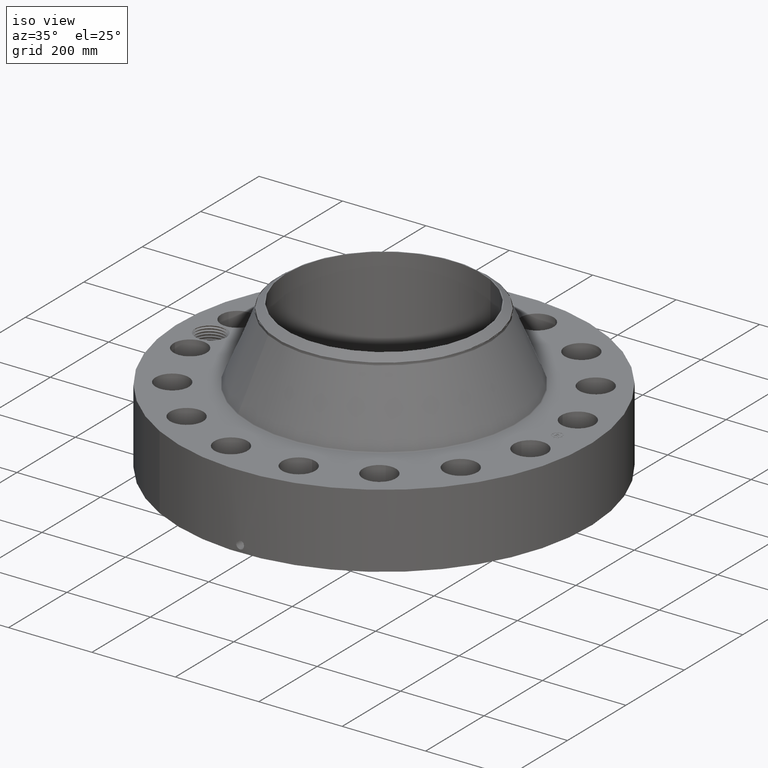
[diagram: clean part render]
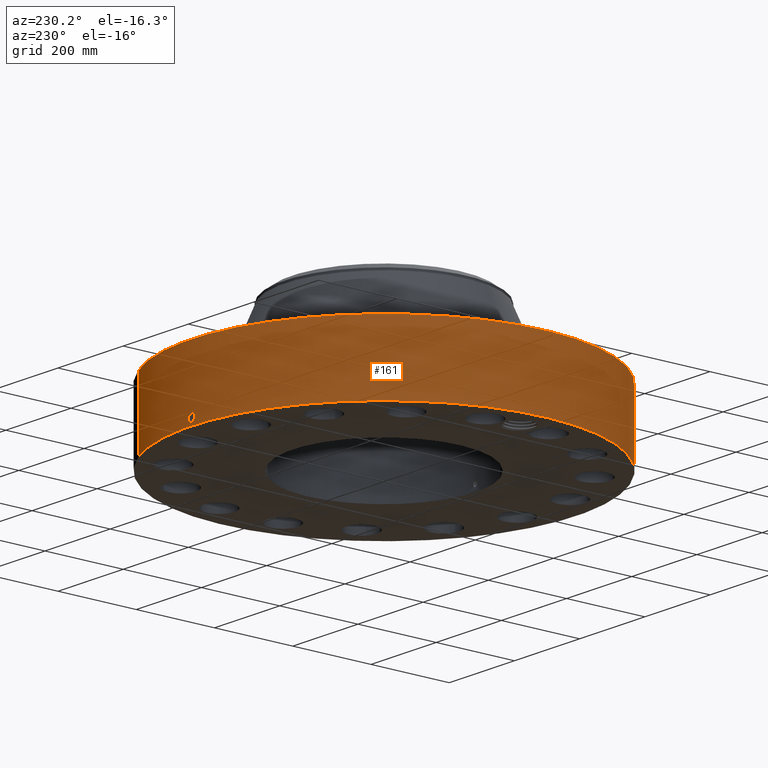
[diagram: tour spotlight — one face highlighted and labeled with its STEP entity id]
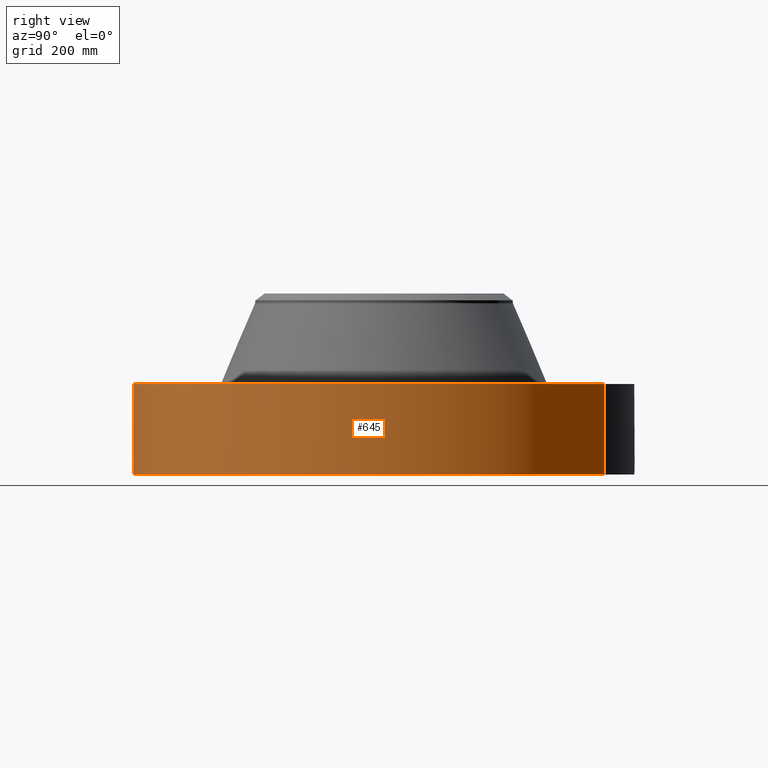
[diagram: tour spotlight — one face highlighted and labeled with its STEP entity id]
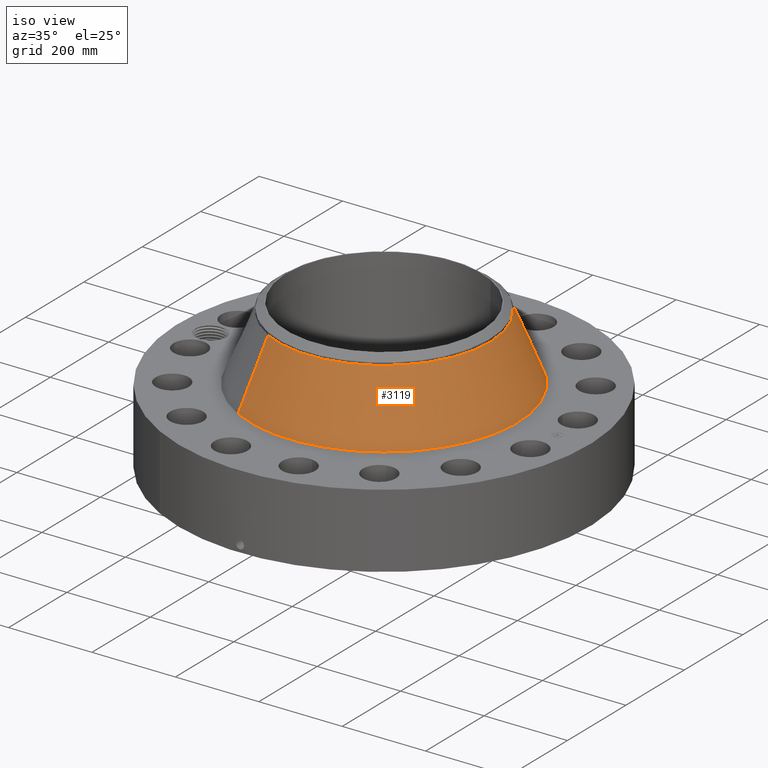
[diagram: tour spotlight — one face highlighted and labeled with its STEP entity id]
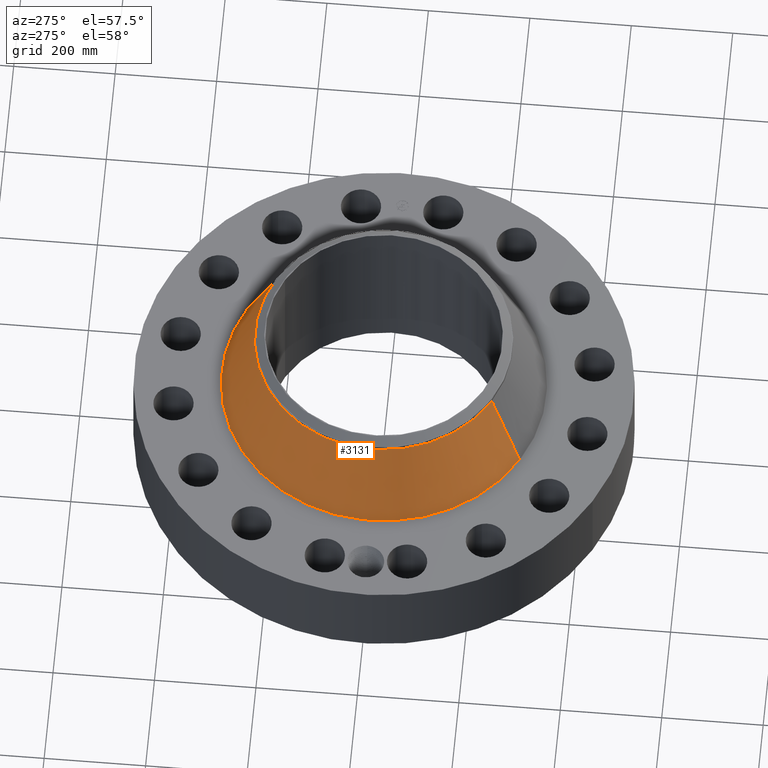
[diagram: tour spotlight — one face highlighted and labeled with its STEP entity id]
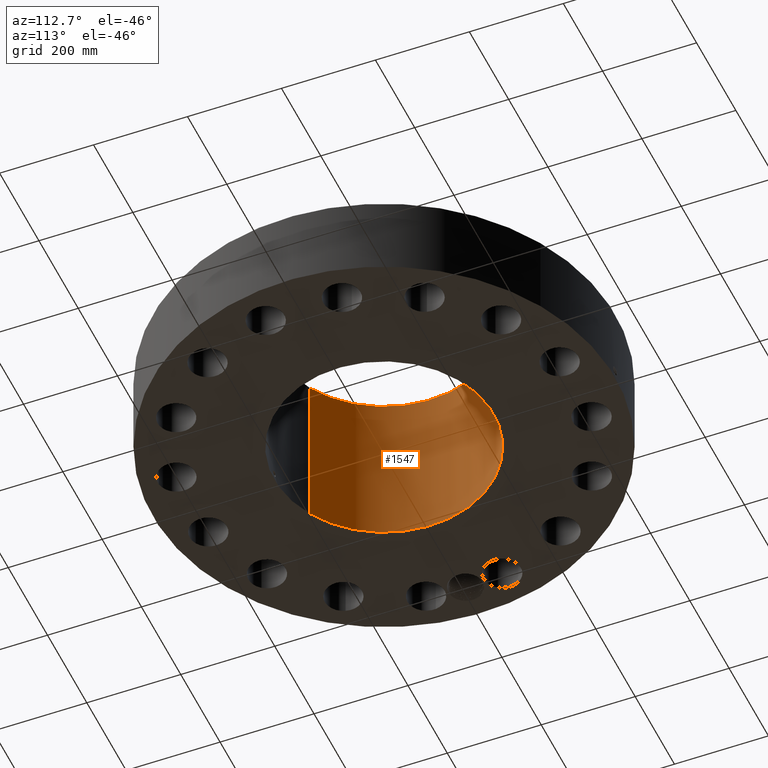
[diagram: tour spotlight — one face highlighted and labeled with its STEP entity id]
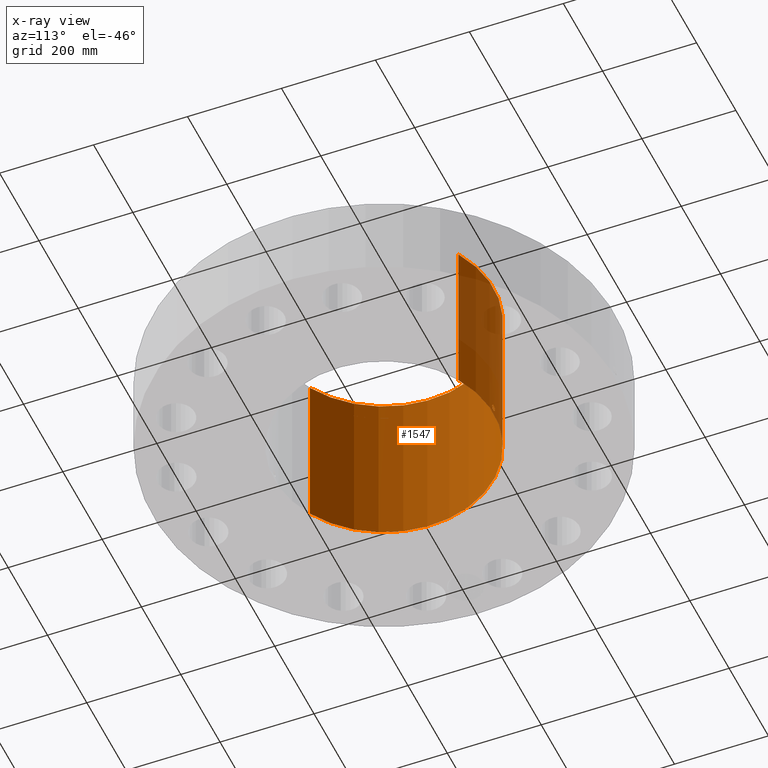
[diagram: x-ray of the same camera — body ghosted, this tour face saturated]
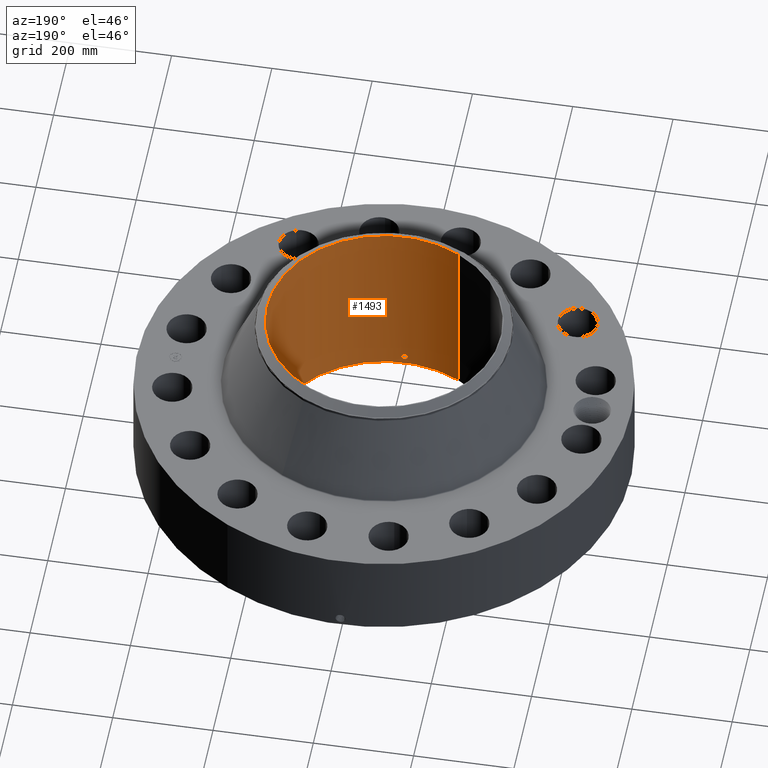
[diagram: tour spotlight — one face highlighted and labeled with its STEP entity id]
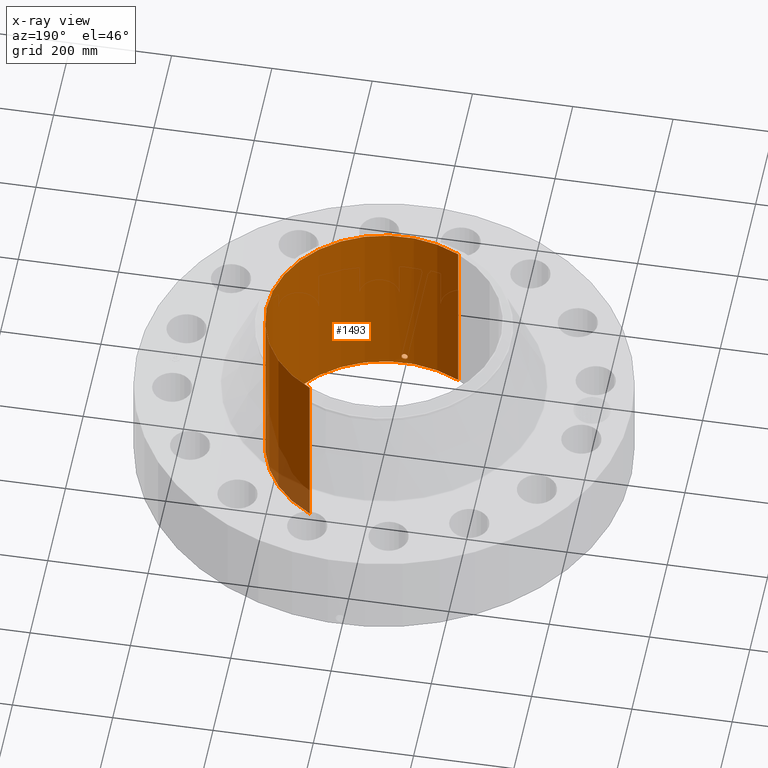
[diagram: x-ray of the same camera — body ghosted, this tour face saturated]
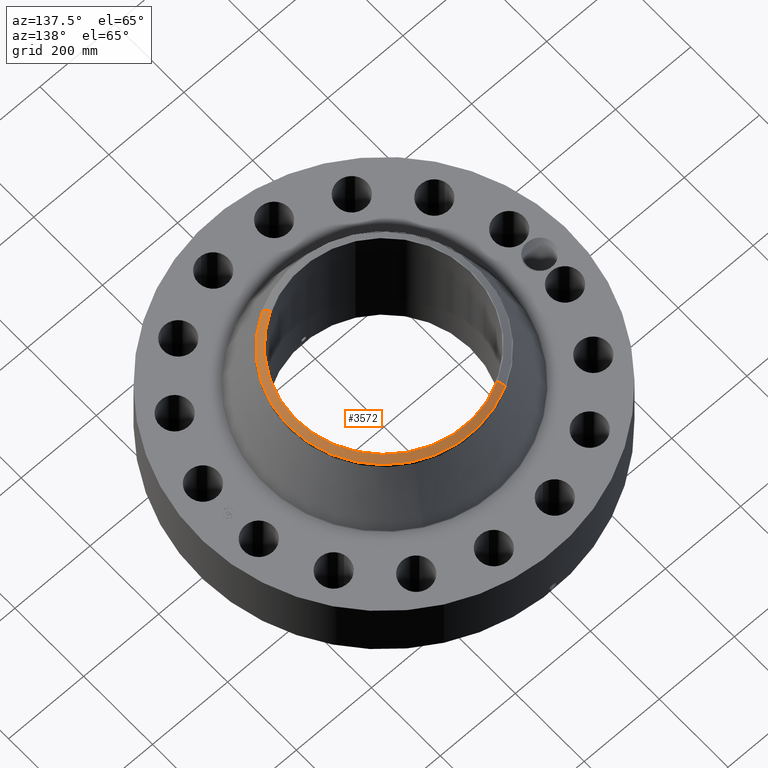
[diagram: tour spotlight — one face highlighted and labeled with its STEP entity id]
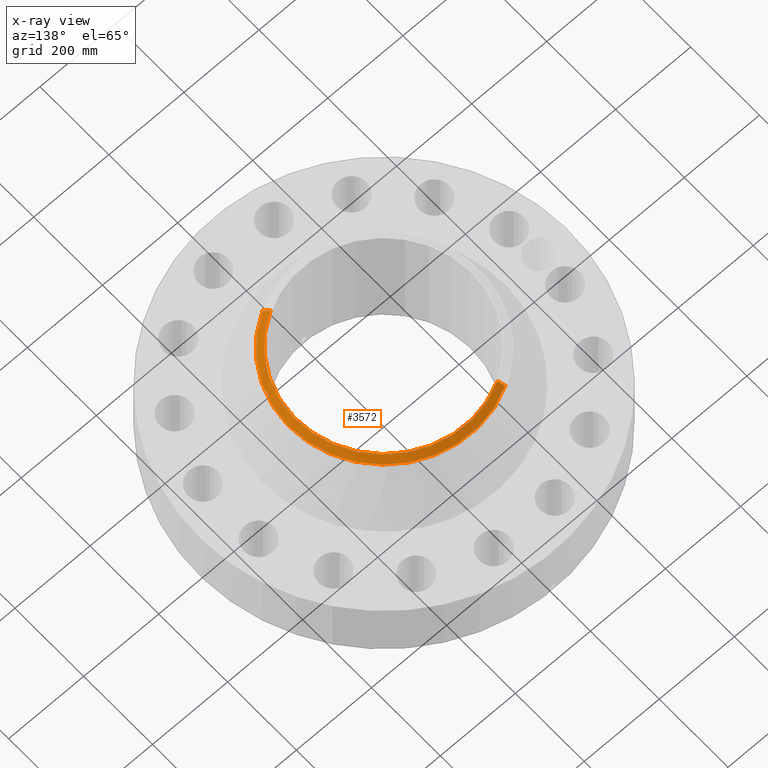
[diagram: x-ray of the same camera — body ghosted, this tour face saturated]
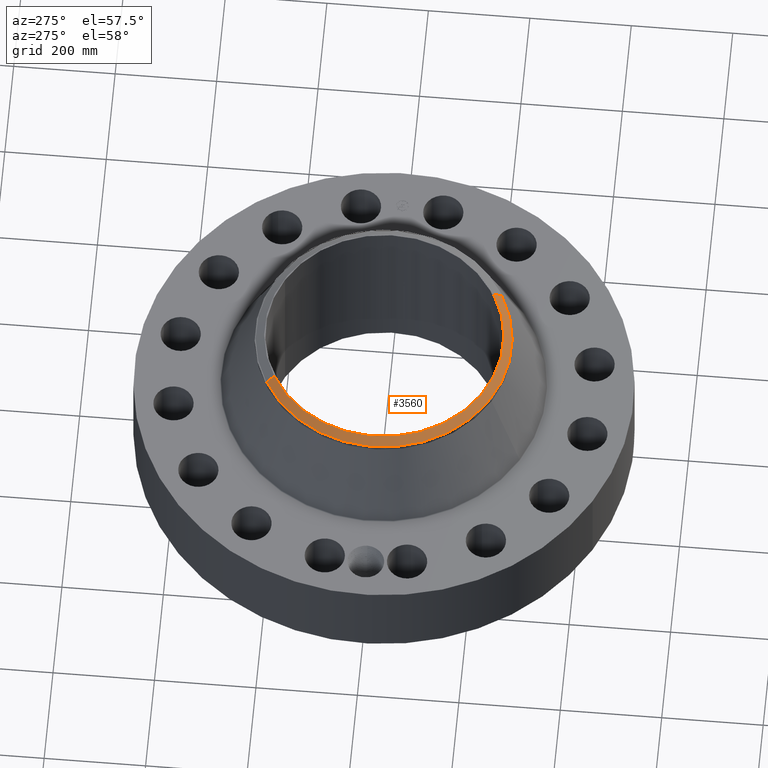
[diagram: tour spotlight — one face highlighted and labeled with its STEP entity id]
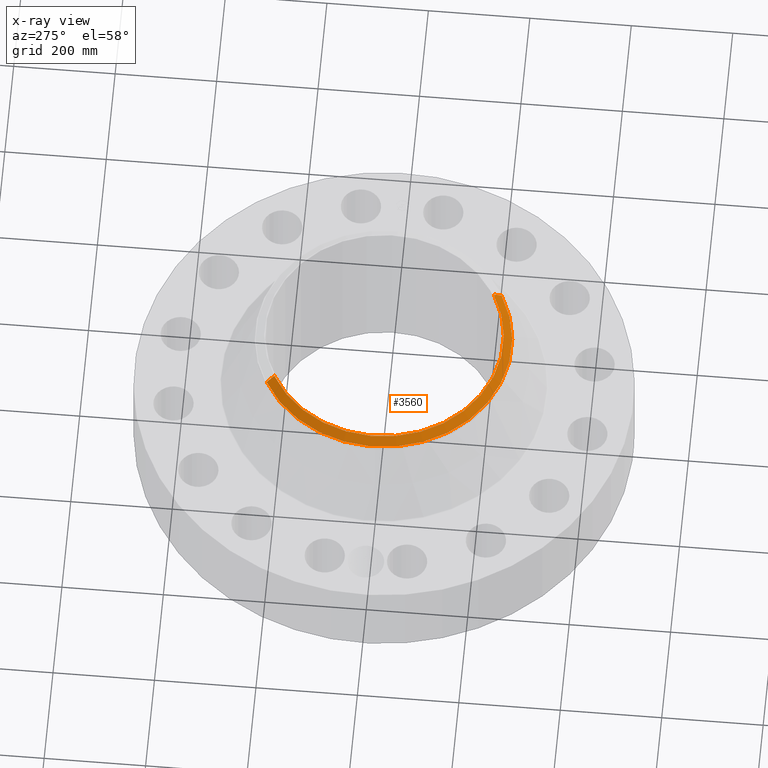
[diagram: x-ray of the same camera — body ghosted, this tour face saturated]
A machine part: a face-by-face anatomy tour. The part has 864 B-rep faces; the first image is the clean iso view, then the 8 largest visible faces are spotlighted one at a time (largest first), each with its STEP entity span.

Face 1 — auxiliary view, entity #161. In plain terms, the highlighted cylindrical surface (partial cylindrical patch) has radius 492.125 mm, axis along (0, 0, -1).
Definition (entity closure, byte-faithful):
#38=AXIS2_PLACEMENT_3D('Cylinder Axis2P3D',#35,#36,#37) ;
#42=AXIS2_PLACEMENT_3D('Circle Axis2P3D',#40,#41,$) ;
#58=AXIS2_PLACEMENT_3D('Circle Axis2P3D',#56,#57,$) ;
#35=CARTESIAN_POINT('Axis2P3D Location',(0.,0.,7.25000000003)) ;
#40=CARTESIAN_POINT('Axis2P3D Location',(0.,0.,0.250000000001)) ;
#44=CARTESIAN_POINT('Vertex',(-9.28886981049,-17.0031621367,0.250000000001)) ;
#46=CARTESIAN_POINT('Vertex',(9.28886981049,17.0031621367,0.250000000001)) ;
#49=CARTESIAN_POINT('Line Origine',(-9.28886981049,-17.0031621367,3.75000000002)) ;
#53=CARTESIAN_POINT('Vertex',(-9.28886981049,-17.0031621367,7.25000000003)) ;
#56=CARTESIAN_POINT('Axis2P3D Location',(0.,0.,7.25000000003)) ;
#60=CARTESIAN_POINT('Vertex',(9.28886981049,17.0031621367,7.25000000003)) ;
#63=CARTESIAN_POINT('Line Origine',(9.28886981049,17.0031621367,3.75000000002)) ;
#75=CARTESIAN_POINT('Control Point',(-0.000715863906137,19.3749999869,1.29411846178)) ;
#76=CARTESIAN_POINT('Control Point',(-0.0187274883313,19.3749993214,1.29408209957)) ;
#77=CARTESIAN_POINT('Control Point',(-0.0367360096991,19.3749733466,1.29266801176)) ;
#78=CARTESIAN_POINT('Control Point',(-0.0545323828118,19.3749232572,1.28989276382)) ;
#79=CARTESIAN_POINT('Vertex',(-0.000715586006328,19.3749999869,1.29411851089)) ;
#81=CARTESIAN_POINT('Vertex',(-0.0545238961166,19.3749235316,1.28989410461)) ;
#85=CARTESIAN_POINT('Control Point',(-0.0545238033061,19.3749232813,1.28989356526)) ;
#86=CARTESIAN_POINT('Control Point',(-0.0952495089722,19.3748086734,1.28558793415)) ;
#87=CARTESIAN_POINT('Control Point',(-0.135369475666,19.3745624178,1.27388902874)) ;
#88=CARTESIAN_POINT('Control Point',(-0.172364944289,19.3742332836,1.25554232244)) ;
#89=CARTESIAN_POINT('Vertex',(-0.172364944289,19.3742332836,1.25554232244)) ;
#93=CARTESIAN_POINT('Control Point',(-0.0312436872624,19.3749748086,0.531206483314)) ;
#94=CARTESIAN_POINT('Control Point',(-0.0678023318629,19.3749158549,0.535827410901)) ;
#95=CARTESIAN_POINT('Control Point',(-0.103721707623,19.3747717037,0.544692425008)) ;
#96=CARTESIAN_POINT('Control Point',(-0.13832670787,19.3745493389,0.55768984845)) ;
#97=CARTESIAN_POINT('Control Point',(-0.226423499782,19.373793319,0.603083765609)) ;
#98=CARTESIAN_POINT('Control Point',(-0.29672046942,19.3727935842,0.673349716743)) ;
#99=CARTESIAN_POINT('Control Point',(-0.331423572753,19.3721888927,0.725376513853)) ;
#100=CARTESIAN_POINT('Control Point',(-0.371132085776,19.3714520452,0.820793001422)) ;
#101=CARTESIAN_POINT('Control Point',(-0.378801310697,19.3712955761,0.921903188621)) ;
#102=CARTESIAN_POINT('Control Point',(-0.376557324657,19.3713406701,0.962651832276)) ;
#103=CARTESIAN_POINT('Control Point',(-0.358089730339,19.3717053706,1.0607502191)) ;
#104=CARTESIAN_POINT('Control Point',(-0.309416329513,19.372565076,1.14816236138)) ;
#105=CARTESIAN_POINT('Control Point',(-0.270709006896,19.3731860125,1.19359996412)) ;
#106=CARTESIAN_POINT('Control Point',(-0.224046601796,19.3737734922,1.22991247236)) ;
#107=CARTESIAN_POINT('Control Point',(-0.172364944289,19.3742332836,1.25554232244)) ;
#108=CARTESIAN_POINT('Vertex',(-0.0312436872625,19.3749748086,0.531206483314)) ;
#112=CARTESIAN_POINT('Control Point',(-0.0312436872625,19.3749748086,0.531206483314)) ;
#113=CARTESIAN_POINT('Control Point',(-0.0208245853632,19.3749916103,0.530877072219)) ;
#114=CARTESIAN_POINT('Control Point',(-0.010397084356,19.3750000015,0.530933315092)) ;
#115=CARTESIAN_POINT('Control Point',(2.72878354638E-006,19.3750000001,0.531374667806)) ;
#116=CARTESIAN_POINT('Vertex',(2.7287835431E-006,19.3750000001,0.531374667806)) ;
#120=CARTESIAN_POINT('Control Point',(0.192438333938,19.3740442988,0.587755384677)) ;
#121=CARTESIAN_POINT('Control Point',(0.148933431972,19.3744764239,0.562242000764)) ;
#122=CARTESIAN_POINT('Control Point',(0.101103937385,19.3748218689,0.543850312289)) ;
#123=CARTESIAN_POINT('Control Point',(0.0508013594739,19.3749999929,0.533530485511)) ;
#124=CARTESIAN_POINT('Control Point',(2.72878358079E-006,19.3750000001,0.531374667806)) ;
#125=CARTESIAN_POINT('Vertex',(0.192438333938,19.3740442988,0.587755384677)) ;
#129=CARTESIAN_POINT('Control Point',(0.192438333938,19.3740442988,0.587755384677)) ;
#130=CARTESIAN_POINT('Control Point',(0.249135601853,19.3734811367,0.621005414192)) ;
#131=CARTESIAN_POINT('Control Point',(0.298965771244,19.372778761,0.665594552044)) ;
#132=CARTESIAN_POINT('Control Point',(0.338770752616,19.3720688151,0.719874275645)) ;
#133=CARTESIAN_POINT('Control Point',(0.38253638269,19.3712307611,0.818236552249)) ;
#134=CARTESIAN_POINT('Control Point',(0.390765580034,19.3710579406,0.923505600086)) ;
#135=CARTESIAN_POINT('Control Point',(0.388528855119,19.3711042966,0.963744548928)) ;
#136=CARTESIAN_POINT('Control Point',(0.373405470833,19.371412167,1.04267052773)) ;
#137=CARTESIAN_POINT('Control Point',(0.338386080565,19.3720580517,1.1143932305)) ;
#138=CARTESIAN_POINT('Control Point',(0.316177991298,19.3724439891,1.14765006657)) ;
#139=CARTESIAN_POINT('Control Point',(0.251663804444,19.3734494968,1.22092676017)) ;
#140=CARTESIAN_POINT('Control Point',(0.167306066196,19.3743818271,1.26997762696)) ;
#141=CARTESIAN_POINT('Control Point',(0.112550834199,19.3747986662,1.28889783266)) ;
#142=CARTESIAN_POINT('Control Point',(0.055857980735,19.3750000746,1.29689292322)) ;
#143=CARTESIAN_POINT('Control Point',(-2.58579355534E-005,19.3750000001,1.29415298429)) ;
#144=CARTESIAN_POINT('Vertex',(-2.58579355508E-005,19.3750000001,1.29415298429)) ;
#148=CARTESIAN_POINT('Control Point',(-0.000715585996851,19.3749999869,1.29411851087)) ;
#149=CARTESIAN_POINT('Control Point',(-0.000370746639545,19.3749999996,1.2941360747)) ;
#150=CARTESIAN_POINT('Control Point',(-2.58579403754E-005,19.3750000001,1.29415298429)) ;
#36=DIRECTION('Axis2P3D Direction',(0.,0.,-0.0393700787402)) ;
#37=DIRECTION('Axis2P3D XDirection',(0.0188750212049,0.0345504945626,0.)) ;
#41=DIRECTION('Axis2P3D Direction',(0.,0.,-0.0393700787402)) ;
#50=DIRECTION('Vector Direction',(0.,0.,-0.0393700787402)) ;
#57=DIRECTION('Axis2P3D Direction',(0.,0.,-0.0393700787402)) ;
#64=DIRECTION('Vector Direction',(0.,0.,-0.0393700787402)) ;
#51=VECTOR('Line Direction',#50,0.0393700787402) ;
#65=VECTOR('Line Direction',#64,0.0393700787402) ;
#69=ORIENTED_EDGE('',*,*,#48,.F.) ;
#70=ORIENTED_EDGE('',*,*,#55,.T.) ;
#71=ORIENTED_EDGE('',*,*,#62,.T.) ;
#72=ORIENTED_EDGE('',*,*,#67,.F.) ;
#153=ORIENTED_EDGE('',*,*,#83,.T.) ;
#154=ORIENTED_EDGE('',*,*,#91,.T.) ;
#155=ORIENTED_EDGE('',*,*,#110,.F.) ;
#156=ORIENTED_EDGE('',*,*,#118,.T.) ;
#157=ORIENTED_EDGE('',*,*,#127,.F.) ;
#158=ORIENTED_EDGE('',*,*,#146,.T.) ;
#159=ORIENTED_EDGE('',*,*,#151,.F.) ;
#160=FACE_BOUND('',#152,.T.) ;
#161=ADVANCED_FACE('PartBody',(#73,#160),#39,.T.) ;
#74=B_SPLINE_CURVE_WITH_KNOTS('',3,(#75,#76,#77,#78),.UNSPECIFIED.,.F.,.U.,(4,4),(34.6168723033,36.6150904812),.UNSPECIFIED.) ;
#84=B_SPLINE_CURVE_WITH_KNOTS('',3,(#85,#86,#87,#88),.UNSPECIFIED.,.F.,.U.,(4,4),(0.,4.60162958232),.UNSPECIFIED.) ;
#92=B_SPLINE_CURVE_WITH_KNOTS('',5,(#93,#94,#95,#96,#97,#98,#99,#100,#101,#102,#103,#104,#105,#106,#107),.UNSPECIFIED.,.F.,.U.,(6,3,3,3,6),(0.,6.40396597362,17.2723773463,24.6016623301,35.3155803226),.UNSPECIFIED.) ;
#111=B_SPLINE_CURVE_WITH_KNOTS('',3,(#112,#113,#114,#115),.UNSPECIFIED.,.F.,.U.,(4,4),(0.,1.0869021121),.UNSPECIFIED.) ;
#119=B_SPLINE_CURVE_WITH_KNOTS('',4,(#120,#121,#122,#123,#124),.UNSPECIFIED.,.F.,.U.,(5,5),(0.,7.07873473784),.UNSPECIFIED.) ;
#128=B_SPLINE_CURVE_WITH_KNOTS('',5,(#129,#130,#131,#132,#133,#134,#135,#136,#137,#138,#139,#140,#141,#142,#143),.UNSPECIFIED.,.F.,.U.,(6,3,3,3,6),(0.,11.5316007477,18.6403647727,25.7940112326,36.2398608955),.UNSPECIFIED.) ;
#147=B_SPLINE_CURVE_WITH_KNOTS('',2,(#148,#149,#150),.UNSPECIFIED.,.F.,.U.,(3,3),(1.0151980904,1.04098483471),.UNSPECIFIED.) ;
#43=CIRCLE('generated circle',#42,19.3750000001) ;
#59=CIRCLE('generated circle',#58,19.3750000001) ;
#39=CYLINDRICAL_SURFACE('generated cylinder',#38,19.3750000001) ;
#48=EDGE_CURVE('',#45,#47,#43,.T.) ;
#55=EDGE_CURVE('',#45,#54,#52,.F.) ;
#62=EDGE_CURVE('',#54,#61,#59,.T.) ;
#67=EDGE_CURVE('',#47,#61,#66,.F.) ;
#83=EDGE_CURVE('',#80,#82,#74,.T.) ;
#91=EDGE_CURVE('',#82,#90,#84,.T.) ;
#110=EDGE_CURVE('',#109,#90,#92,.T.) ;
#118=EDGE_CURVE('',#109,#117,#111,.T.) ;
#127=EDGE_CURVE('',#126,#117,#119,.T.) ;
#146=EDGE_CURVE('',#126,#145,#128,.T.) ;
#151=EDGE_CURVE('',#80,#145,#147,.T.) ;
#68=EDGE_LOOP('',(#69,#70,#71,#72)) ;
#152=EDGE_LOOP('',(#153,#154,#155,#156,#157,#158,#159)) ;
#73=FACE_OUTER_BOUND('',#68,.T.) ;
#52=LINE('Line',#49,#51) ;
#66=LINE('Line',#63,#65) ;
#45=VERTEX_POINT('',#44) ;
#47=VERTEX_POINT('',#46) ;
#54=VERTEX_POINT('',#53) ;
#61=VERTEX_POINT('',#60) ;
#80=VERTEX_POINT('',#79) ;
#82=VERTEX_POINT('',#81) ;
#90=VERTEX_POINT('',#89) ;
#109=VERTEX_POINT('',#108) ;
#117=VERTEX_POINT('',#116) ;
#126=VERTEX_POINT('',#125) ;
#145=VERTEX_POINT('',#144) ;

Face 2 — right view, entity #645. In plain terms, the highlighted cylindrical surface (partial cylindrical patch) has radius 492.125 mm, axis along (0, 0, -1).
Definition (entity closure, byte-faithful):
#38=AXIS2_PLACEMENT_3D('Cylinder Axis2P3D',#35,#36,#37) ;
#169=AXIS2_PLACEMENT_3D('Circle Axis2P3D',#167,#168,$) ;
#549=AXIS2_PLACEMENT_3D('Circle Axis2P3D',#547,#548,$) ;
#35=CARTESIAN_POINT('Axis2P3D Location',(0.,0.,7.25000000003)) ;
#44=CARTESIAN_POINT('Vertex',(-9.28886981049,-17.0031621367,0.250000000001)) ;
#46=CARTESIAN_POINT('Vertex',(9.28886981049,17.0031621367,0.250000000001)) ;
#49=CARTESIAN_POINT('Line Origine',(-9.28886981049,-17.0031621367,3.75000000002)) ;
#53=CARTESIAN_POINT('Vertex',(-9.28886981049,-17.0031621367,7.25000000003)) ;
#60=CARTESIAN_POINT('Vertex',(9.28886981049,17.0031621367,7.25000000003)) ;
#63=CARTESIAN_POINT('Line Origine',(9.28886981049,17.0031621367,3.75000000002)) ;
#167=CARTESIAN_POINT('Axis2P3D Location',(0.,0.,0.250000000001)) ;
#547=CARTESIAN_POINT('Axis2P3D Location',(0.,0.,7.25000000003)) ;
#559=CARTESIAN_POINT('Control Point',(0.000715863900766,-19.3749999869,1.29411846178)) ;
#560=CARTESIAN_POINT('Control Point',(0.0187274883215,-19.3749993214,1.29408209957)) ;
#561=CARTESIAN_POINT('Control Point',(0.036736009691,-19.3749733466,1.29266801176)) ;
#562=CARTESIAN_POINT('Control Point',(0.0545323828083,-19.3749232572,1.28989276382)) ;
#563=CARTESIAN_POINT('Vertex',(0.00071558600633,-19.3749999869,1.29411851089)) ;
#565=CARTESIAN_POINT('Vertex',(0.0545238961166,-19.3749235316,1.28989410461)) ;
#569=CARTESIAN_POINT('Control Point',(0.0545238033061,-19.3749232813,1.28989356526)) ;
#570=CARTESIAN_POINT('Control Point',(0.0952495089893,-19.3748086734,1.28558793415)) ;
#571=CARTESIAN_POINT('Control Point',(0.13536947565,-19.3745624178,1.27388902874)) ;
#572=CARTESIAN_POINT('Control Point',(0.172364944289,-19.3742332836,1.25554232244)) ;
#573=CARTESIAN_POINT('Vertex',(0.172364944289,-19.3742332836,1.25554232244)) ;
#577=CARTESIAN_POINT('Control Point',(0.0312436872625,-19.3749748086,0.531206483314)) ;
#578=CARTESIAN_POINT('Control Point',(0.0678023318613,-19.3749158549,0.535827410901)) ;
#579=CARTESIAN_POINT('Control Point',(0.10372170762,-19.3747717037,0.544692425009)) ;
#580=CARTESIAN_POINT('Control Point',(0.138326707874,-19.3745493389,0.557689848452)) ;
#581=CARTESIAN_POINT('Control Point',(0.226423499709,-19.373793319,0.603083765571)) ;
#582=CARTESIAN_POINT('Control Point',(0.296720469299,-19.3727935842,0.673349716623)) ;
#583=CARTESIAN_POINT('Control Point',(0.331423572817,-19.3721888927,0.725376514008)) ;
#584=CARTESIAN_POINT('Control Point',(0.371132085783,-19.3714520452,0.820793001505)) ;
#585=CARTESIAN_POINT('Control Point',(0.378801310697,-19.3712955761,0.92190318862)) ;
#586=CARTESIAN_POINT('Control Point',(0.376557324656,-19.3713406701,0.962651832278)) ;
#587=CARTESIAN_POINT('Control Point',(0.358089730346,-19.3717053706,1.06075021906)) ;
#588=CARTESIAN_POINT('Control Point',(0.309416329554,-19.372565076,1.1481623613)) ;
#589=CARTESIAN_POINT('Control Point',(0.270709006828,-19.3731860125,1.19359996416)) ;
#590=CARTESIAN_POINT('Control Point',(0.224046601759,-19.3737734922,1.22991247238)) ;
#591=CARTESIAN_POINT('Control Point',(0.172364944289,-19.3742332836,1.25554232244)) ;
#592=CARTESIAN_POINT('Vertex',(0.0312436872625,-19.3749748086,0.531206483314)) ;
#596=CARTESIAN_POINT('Control Point',(0.0312436872625,-19.3749748086,0.531206483314)) ;
#597=CARTESIAN_POINT('Control Point',(0.0208245853632,-19.3749916103,0.530877072219)) ;
#598=CARTESIAN_POINT('Control Point',(0.010397084356,-19.3750000015,0.530933315092)) ;
#599=CARTESIAN_POINT('Control Point',(-2.72878354875E-006,-19.3750000001,0.531374667806)) ;
#600=CARTESIAN_POINT('Vertex',(-2.72878354541E-006,-19.3750000001,0.531374667806)) ;
#604=CARTESIAN_POINT('Control Point',(-0.192438333938,-19.3740442988,0.587755384677)) ;
#605=CARTESIAN_POINT('Control Point',(-0.148933431991,-19.3744764239,0.562242000775)) ;
#606=CARTESIAN_POINT('Control Point',(-0.101103937362,-19.3748218689,0.543850312285)) ;
#607=CARTESIAN_POINT('Control Point',(-0.0508013594513,-19.3749999929,0.53353048551)) ;
#608=CARTESIAN_POINT('Control Point',(-2.72878354875E-006,-19.3750000001,0.531374667806)) ;
#609=CARTESIAN_POINT('Vertex',(-0.192438333938,-19.3740442988,0.587755384677)) ;
#613=CARTESIAN_POINT('Control Point',(-0.192438333938,-19.3740442988,0.587755384677)) ;
#614=CARTESIAN_POINT('Control Point',(-0.249135601972,-19.3734811367,0.621005414262)) ;
#615=CARTESIAN_POINT('Control Point',(-0.298965771452,-19.372778761,0.66559455223)) ;
#616=CARTESIAN_POINT('Control Point',(-0.33877075281,-19.3720688151,0.719874275894)) ;
#617=CARTESIAN_POINT('Control Point',(-0.382536382819,-19.3712307611,0.818236552637)) ;
#618=CARTESIAN_POINT('Control Point',(-0.390765580025,-19.3710579406,0.923505600568)) ;
#619=CARTESIAN_POINT('Control Point',(-0.388528855038,-19.3711042966,0.963744549594)) ;
#620=CARTESIAN_POINT('Control Point',(-0.37340547063,-19.371412167,1.04267052832)) ;
#621=CARTESIAN_POINT('Control Point',(-0.338386080275,-19.3720580517,1.11439323098)) ;
#622=CARTESIAN_POINT('Control Point',(-0.316177990953,-19.3724439891,1.14765006703)) ;
#623=CARTESIAN_POINT('Control Point',(-0.251663804045,-19.3734494968,1.22092676047)) ;
#624=CARTESIAN_POINT('Control Point',(-0.167306065805,-19.3743818271,1.26997762711)) ;
#625=CARTESIAN_POINT('Control Point',(-0.112550834048,-19.3747986662,1.28889783268)) ;
#626=CARTESIAN_POINT('Control Point',(-0.0558579806601,-19.3750000746,1.29689292322)) ;
#627=CARTESIAN_POINT('Control Point',(2.5857935551E-005,-19.3750000001,1.29415298429)) ;
#628=CARTESIAN_POINT('Vertex',(2.58579355483E-005,-19.3750000001,1.29415298429)) ;
#632=CARTESIAN_POINT('Control Point',(0.000715585996895,-19.3749999869,1.29411851087)) ;
#633=CARTESIAN_POINT('Control Point',(0.000370746639551,-19.3749999996,1.2941360747)) ;
#634=CARTESIAN_POINT('Control Point',(2.58579403441E-005,-19.3750000001,1.29415298429)) ;
#36=DIRECTION('Axis2P3D Direction',(0.,0.,-0.0393700787402)) ;
#37=DIRECTION('Axis2P3D XDirection',(0.0188750212049,0.0345504945626,0.)) ;
#50=DIRECTION('Vector Direction',(0.,0.,-0.0393700787402)) ;
#64=DIRECTION('Vector Direction',(0.,0.,-0.0393700787402)) ;
#168=DIRECTION('Axis2P3D Direction',(0.,0.,-0.0393700787402)) ;
#548=DIRECTION('Axis2P3D Direction',(0.,0.,-0.0393700787402)) ;
#51=VECTOR('Line Direction',#50,0.0393700787402) ;
#65=VECTOR('Line Direction',#64,0.0393700787402) ;
#553=ORIENTED_EDGE('',*,*,#171,.F.) ;
#554=ORIENTED_EDGE('',*,*,#67,.T.) ;
#555=ORIENTED_EDGE('',*,*,#551,.T.) ;
#556=ORIENTED_EDGE('',*,*,#55,.F.) ;
#637=ORIENTED_EDGE('',*,*,#567,.T.) ;
#638=ORIENTED_EDGE('',*,*,#575,.T.) ;
#639=ORIENTED_EDGE('',*,*,#594,.F.) ;
#640=ORIENTED_EDGE('',*,*,#602,.T.) ;
#641=ORIENTED_EDGE('',*,*,#611,.F.) ;
#642=ORIENTED_EDGE('',*,*,#630,.T.) ;
#643=ORIENTED_EDGE('',*,*,#635,.F.) ;
#644=FACE_BOUND('',#636,.T.) ;
#645=ADVANCED_FACE('PartBody',(#557,#644),#39,.T.) ;
#558=B_SPLINE_CURVE_WITH_KNOTS('',3,(#559,#560,#561,#562),.UNSPECIFIED.,.F.,.U.,(4,4),(34.6168722876,36.6150904657),.UNSPECIFIED.) ;
#568=B_SPLINE_CURVE_WITH_KNOTS('',3,(#569,#570,#571,#572),.UNSPECIFIED.,.F.,.U.,(4,4),(0.,4.60162958425),.UNSPECIFIED.) ;
#576=B_SPLINE_CURVE_WITH_KNOTS('',5,(#577,#578,#579,#580,#581,#582,#583,#584,#585,#586,#587,#588,#589,#590,#591),.UNSPECIFIED.,.F.,.U.,(6,3,3,3,6),(0.,6.40396597332,17.2723773312,24.6016623148,35.3155802998),.UNSPECIFIED.) ;
#595=B_SPLINE_CURVE_WITH_KNOTS('',3,(#596,#597,#598,#599),.UNSPECIFIED.,.F.,.U.,(4,4),(0.,1.0869021121),.UNSPECIFIED.) ;
#603=B_SPLINE_CURVE_WITH_KNOTS('',4,(#604,#605,#606,#607,#608),.UNSPECIFIED.,.F.,.U.,(5,5),(0.,7.07873473469),.UNSPECIFIED.) ;
#612=B_SPLINE_CURVE_WITH_KNOTS('',5,(#613,#614,#615,#616,#617,#618,#619,#620,#621,#622,#623,#624,#625,#626,#627),.UNSPECIFIED.,.F.,.U.,(6,3,3,3,6),(0.,11.5316007719,18.6403647884,25.7940112482,36.2398608971),.UNSPECIFIED.) ;
#631=B_SPLINE_CURVE_WITH_KNOTS('',2,(#632,#633,#634),.UNSPECIFIED.,.F.,.U.,(3,3),(1.0151980904,1.04098483471),.UNSPECIFIED.) ;
#170=CIRCLE('generated circle',#169,19.3750000001) ;
#550=CIRCLE('generated circle',#549,19.3750000001) ;
#39=CYLINDRICAL_SURFACE('generated cylinder',#38,19.3750000001) ;
#55=EDGE_CURVE('',#45,#54,#52,.F.) ;
#67=EDGE_CURVE('',#47,#61,#66,.F.) ;
#171=EDGE_CURVE('',#47,#45,#170,.T.) ;
#551=EDGE_CURVE('',#61,#54,#550,.T.) ;
#567=EDGE_CURVE('',#564,#566,#558,.T.) ;
#575=EDGE_CURVE('',#566,#574,#568,.T.) ;
#594=EDGE_CURVE('',#593,#574,#576,.T.) ;
#602=EDGE_CURVE('',#593,#601,#595,.T.) ;
#611=EDGE_CURVE('',#610,#601,#603,.T.) ;
#630=EDGE_CURVE('',#610,#629,#612,.T.) ;
#635=EDGE_CURVE('',#564,#629,#631,.T.) ;
#552=EDGE_LOOP('',(#553,#554,#555,#556)) ;
#636=EDGE_LOOP('',(#637,#638,#639,#640,#641,#642,#643)) ;
#557=FACE_OUTER_BOUND('',#552,.T.) ;
#52=LINE('Line',#49,#51) ;
#66=LINE('Line',#63,#65) ;
#45=VERTEX_POINT('',#44) ;
#47=VERTEX_POINT('',#46) ;
#54=VERTEX_POINT('',#53) ;
#61=VERTEX_POINT('',#60) ;
#564=VERTEX_POINT('',#563) ;
#566=VERTEX_POINT('',#565) ;
#574=VERTEX_POINT('',#573) ;
#593=VERTEX_POINT('',#592) ;
#601=VERTEX_POINT('',#600) ;
#610=VERTEX_POINT('',#609) ;
#629=VERTEX_POINT('',#628) ;

Face 3 — iso view, entity #3119. In plain terms, the highlighted conical surface has half-angle 22.819 deg.
Definition (entity closure, byte-faithful):
#2348=AXIS2_PLACEMENT_3D('Circle Axis2P3D',#2346,#2347,$) ;
#3092=AXIS2_PLACEMENT_3D('Cone Axis2P3D',#3089,#3090,#3091) ;
#3103=AXIS2_PLACEMENT_3D('Circle Axis2P3D',#3101,#3102,$) ;
#2343=CARTESIAN_POINT('Vertex',(6.03792896031,11.0523548264,7.32346207392)) ;
#2346=CARTESIAN_POINT('Axis2P3D Location',(0.,0.,7.32346207392)) ;
#2350=CARTESIAN_POINT('Vertex',(-6.03792896031,-11.0523548264,7.32346207392)) ;
#3089=CARTESIAN_POINT('Axis2P3D Location',(0.,0.,13.4889348475)) ;
#3094=CARTESIAN_POINT('Line Origine',(5.41609217318,9.91409022268,10.4061984607)) ;
#3098=CARTESIAN_POINT('Vertex',(4.79425538606,8.77582561894,13.4889348475)) ;
#3101=CARTESIAN_POINT('Axis2P3D Location',(0.,0.,13.4889348475)) ;
#3105=CARTESIAN_POINT('Vertex',(-4.79425538606,-8.77582561894,13.4889348475)) ;
#3108=CARTESIAN_POINT('Line Origine',(-5.41609217318,-9.91409022268,10.4061984607)) ;
#2347=DIRECTION('Axis2P3D Direction',(0.,0.,-0.0393700787402)) ;
#3090=DIRECTION('Axis2P3D Direction',(0.,0.,-0.0393700787402)) ;
#3091=DIRECTION('Axis2P3D XDirection',(-0.0188750212049,-0.0345504945626,0.)) ;
#3095=DIRECTION('Vector Direction',(0.00732003618502,0.0133992363592,-0.0362888500127)) ;
#3102=DIRECTION('Axis2P3D Direction',(0.,0.,-0.0393700787402)) ;
#3109=DIRECTION('Vector Direction',(-0.00732003618502,-0.0133992363592,-0.0362888500127)) ;
#3096=VECTOR('Line Direction',#3095,0.0393700787402) ;
#3110=VECTOR('Line Direction',#3109,0.0393700787402) ;
#3114=ORIENTED_EDGE('',*,*,#2352,.F.) ;
#3115=ORIENTED_EDGE('',*,*,#3100,.T.) ;
#3116=ORIENTED_EDGE('',*,*,#3107,.T.) ;
#3117=ORIENTED_EDGE('',*,*,#3112,.F.) ;
#3119=ADVANCED_FACE('PartBody',(#3118),#3093,.T.) ;
#2349=CIRCLE('generated circle',#2348,12.5940912073) ;
#3104=CIRCLE('generated circle',#3103,10.) ;
#3093=CONICAL_SURFACE('Cone',#3092,10.,0.398261023556) ;
#2352=EDGE_CURVE('',#2344,#2351,#2349,.T.) ;
#3100=EDGE_CURVE('',#2344,#3099,#3097,.F.) ;
#3107=EDGE_CURVE('',#3099,#3106,#3104,.T.) ;
#3112=EDGE_CURVE('',#2351,#3106,#3111,.F.) ;
#3113=EDGE_LOOP('',(#3114,#3115,#3116,#3117)) ;
#3118=FACE_OUTER_BOUND('',#3113,.T.) ;
#3097=LINE('Line',#3094,#3096) ;
#3111=LINE('Line',#3108,#3110) ;
#2344=VERTEX_POINT('',#2343) ;
#2351=VERTEX_POINT('',#2350) ;
#3099=VERTEX_POINT('',#3098) ;
#3106=VERTEX_POINT('',#3105) ;

Face 4 — auxiliary view, entity #3131. In plain terms, the highlighted conical surface has half-angle 22.819 deg.
Definition (entity closure, byte-faithful):
#2367=AXIS2_PLACEMENT_3D('Circle Axis2P3D',#2365,#2366,$) ;
#3092=AXIS2_PLACEMENT_3D('Cone Axis2P3D',#3089,#3090,#3091) ;
#3122=AXIS2_PLACEMENT_3D('Circle Axis2P3D',#3120,#3121,$) ;
#2343=CARTESIAN_POINT('Vertex',(6.03792896031,11.0523548264,7.32346207392)) ;
#2350=CARTESIAN_POINT('Vertex',(-6.03792896031,-11.0523548264,7.32346207392)) ;
#2365=CARTESIAN_POINT('Axis2P3D Location',(0.,0.,7.32346207392)) ;
#3089=CARTESIAN_POINT('Axis2P3D Location',(0.,0.,13.4889348475)) ;
#3094=CARTESIAN_POINT('Line Origine',(5.41609217318,9.91409022268,10.4061984607)) ;
#3098=CARTESIAN_POINT('Vertex',(4.79425538606,8.77582561894,13.4889348475)) ;
#3105=CARTESIAN_POINT('Vertex',(-4.79425538606,-8.77582561894,13.4889348475)) ;
#3108=CARTESIAN_POINT('Line Origine',(-5.41609217318,-9.91409022268,10.4061984607)) ;
#3120=CARTESIAN_POINT('Axis2P3D Location',(0.,0.,13.4889348475)) ;
#2366=DIRECTION('Axis2P3D Direction',(0.,0.,-0.0393700787402)) ;
#3090=DIRECTION('Axis2P3D Direction',(0.,0.,-0.0393700787402)) ;
#3091=DIRECTION('Axis2P3D XDirection',(-0.0188750212049,-0.0345504945626,0.)) ;
#3095=DIRECTION('Vector Direction',(0.00732003618502,0.0133992363592,-0.0362888500127)) ;
#3109=DIRECTION('Vector Direction',(-0.00732003618502,-0.0133992363592,-0.0362888500127)) ;
#3121=DIRECTION('Axis2P3D Direction',(0.,0.,-0.0393700787402)) ;
#3096=VECTOR('Line Direction',#3095,0.0393700787402) ;
#3110=VECTOR('Line Direction',#3109,0.0393700787402) ;
#3126=ORIENTED_EDGE('',*,*,#2369,.F.) ;
#3127=ORIENTED_EDGE('',*,*,#3112,.T.) ;
#3128=ORIENTED_EDGE('',*,*,#3124,.T.) ;
#3129=ORIENTED_EDGE('',*,*,#3100,.F.) ;
#3131=ADVANCED_FACE('PartBody',(#3130),#3093,.T.) ;
#2368=CIRCLE('generated circle',#2367,12.5940912073) ;
#3123=CIRCLE('generated circle',#3122,10.) ;
#3093=CONICAL_SURFACE('Cone',#3092,10.,0.398261023556) ;
#2369=EDGE_CURVE('',#2351,#2344,#2368,.T.) ;
#3100=EDGE_CURVE('',#2344,#3099,#3097,.F.) ;
#3112=EDGE_CURVE('',#2351,#3106,#3111,.F.) ;
#3124=EDGE_CURVE('',#3106,#3099,#3123,.T.) ;
#3125=EDGE_LOOP('',(#3126,#3127,#3128,#3129)) ;
#3130=FACE_OUTER_BOUND('',#3125,.T.) ;
#3097=LINE('Line',#3094,#3096) ;
#3111=LINE('Line',#3108,#3110) ;
#2344=VERTEX_POINT('',#2343) ;
#2351=VERTEX_POINT('',#2350) ;
#3099=VERTEX_POINT('',#3098) ;
#3106=VERTEX_POINT('',#3105) ;

Face 5 — auxiliary view, entity #1547. An x-ray twin of the same camera follows (body ghosted, this face saturated) — the face is partly hidden behind the body. In plain terms, the highlighted cylindrical surface (partial cylindrical patch) has radius 233.375 mm, axis along (0, 0, -1).
Definition (entity closure, byte-faithful):
#269=AXIS2_PLACEMENT_3D('Circle Axis2P3D',#267,#268,$) ;
#1424=AXIS2_PLACEMENT_3D('Cylinder Axis2P3D',#1421,#1422,#1423) ;
#1496=AXIS2_PLACEMENT_3D('Circle Axis2P3D',#1494,#1495,$) ;
#262=CARTESIAN_POINT('Vertex',(4.40496184871,8.06322857868,0.250000000001)) ;
#264=CARTESIAN_POINT('Vertex',(-4.40496184871,-8.06322857868,0.250000000001)) ;
#267=CARTESIAN_POINT('Axis2P3D Location',(0.,0.,0.250000000001)) ;
#1421=CARTESIAN_POINT('Axis2P3D Location',(0.,0.,7.25000000003)) ;
#1430=CARTESIAN_POINT('Vertex',(4.40496184871,8.06322857868,14.2500000001)) ;
#1432=CARTESIAN_POINT('Vertex',(-4.40496184871,-8.06322857868,14.2500000001)) ;
#1435=CARTESIAN_POINT('Line Origine',(4.40496184871,8.06322857868,7.25000000003)) ;
#1440=CARTESIAN_POINT('Line Origine',(-4.40496184871,-8.06322857868,7.25000000003)) ;
#1494=CARTESIAN_POINT('Axis2P3D Location',(0.,0.,14.2500000001)) ;
#1506=CARTESIAN_POINT('Control Point',(0.219395640473,9.18538020735,1.05985638466)) ;
#1507=CARTESIAN_POINT('Control Point',(0.194442987078,9.18597620918,1.10553191032)) ;
#1508=CARTESIAN_POINT('Control Point',(0.157605096171,9.18677131345,1.14471181719)) ;
#1509=CARTESIAN_POINT('Control Point',(0.111107557809,9.18754458944,1.17324327845)) ;
#1510=CARTESIAN_POINT('Control Point',(0.0336725378717,9.18815982914,1.19588270224)) ;
#1511=CARTESIAN_POINT('Control Point',(-0.0446721778298,9.18794721576,1.18805622151)) ;
#1512=CARTESIAN_POINT('Control Point',(-0.0703022473758,9.1877821633,1.18204340684)) ;
#1513=CARTESIAN_POINT('Control Point',(-0.143958767508,9.18705279408,1.15421065477)) ;
#1514=CARTESIAN_POINT('Control Point',(-0.203246603001,9.18586227924,1.09949470383)) ;
#1515=CARTESIAN_POINT('Control Point',(-0.232211400162,9.18508146425,1.05325459216)) ;
#1516=CARTESIAN_POINT('Control Point',(-0.255840806351,9.1844396243,0.975108227343)) ;
#1517=CARTESIAN_POINT('Control Point',(-0.248282255273,9.18464476708,0.895744564551)) ;
#1518=CARTESIAN_POINT('Control Point',(-0.242048491201,9.18481640947,0.869182916382)) ;
#1519=CARTESIAN_POINT('Control Point',(-0.232315151849,9.18507162084,0.843792622296)) ;
#1520=CARTESIAN_POINT('Control Point',(-0.219395640473,9.18538020735,0.820143615352)) ;
#1521=CARTESIAN_POINT('Vertex',(0.219395640473,9.18538020735,1.05985638466)) ;
#1523=CARTESIAN_POINT('Vertex',(-0.219395640473,9.18538020735,0.820143615352)) ;
#1527=CARTESIAN_POINT('Control Point',(-0.219395640473,9.18538020735,0.820143615352)) ;
#1528=CARTESIAN_POINT('Control Point',(-0.194442987074,9.18597620918,0.774468089679)) ;
#1529=CARTESIAN_POINT('Control Point',(-0.157605096157,9.18677131345,0.735288182805)) ;
#1530=CARTESIAN_POINT('Control Point',(-0.111107557832,9.18754458944,0.706756721561)) ;
#1531=CARTESIAN_POINT('Control Point',(-0.0336725378853,9.18815982914,0.68411729777)) ;
#1532=CARTESIAN_POINT('Control Point',(0.0446721778262,9.18794721576,0.691943778494)) ;
#1533=CARTESIAN_POINT('Control Point',(0.0703022473732,9.1877821633,0.697956593163)) ;
#1534=CARTESIAN_POINT('Control Point',(0.143958767429,9.18705279408,0.725789345206)) ;
#1535=CARTESIAN_POINT('Control Point',(0.203246602875,9.18586227924,0.780505296065)) ;
#1536=CARTESIAN_POINT('Control Point',(0.232211400209,9.18508146425,0.826745408007)) ;
#1537=CARTESIAN_POINT('Control Point',(0.255840806343,9.1844396243,0.904891772745)) ;
#1538=CARTESIAN_POINT('Control Point',(0.248282255273,9.18464476708,0.984255435456)) ;
#1539=CARTESIAN_POINT('Control Point',(0.242048491202,9.18481640947,1.01081708362)) ;
#1540=CARTESIAN_POINT('Control Point',(0.23231515185,9.18507162084,1.03620737771)) ;
#1541=CARTESIAN_POINT('Control Point',(0.219395640473,9.18538020735,1.05985638466)) ;
#268=DIRECTION('Axis2P3D Direction',(0.,0.,-0.0393700787402)) ;
#1422=DIRECTION('Axis2P3D Direction',(0.,0.,-0.0393700787402)) ;
#1423=DIRECTION('Axis2P3D XDirection',(-0.0188750212049,-0.0345504945626,0.)) ;
#1436=DIRECTION('Vector Direction',(0.,0.,-0.0393700787402)) ;
#1441=DIRECTION('Vector Direction',(0.,0.,-0.0393700787402)) ;
#1495=DIRECTION('Axis2P3D Direction',(0.,0.,-0.0393700787402)) ;
#1437=VECTOR('Line Direction',#1436,0.0393700787402) ;
#1442=VECTOR('Line Direction',#1441,0.0393700787402) ;
#1500=ORIENTED_EDGE('',*,*,#1498,.F.) ;
#1501=ORIENTED_EDGE('',*,*,#1444,.T.) ;
#1502=ORIENTED_EDGE('',*,*,#271,.T.) ;
#1503=ORIENTED_EDGE('',*,*,#1439,.F.) ;
#1544=ORIENTED_EDGE('',*,*,#1525,.F.) ;
#1545=ORIENTED_EDGE('',*,*,#1542,.F.) ;
#1546=FACE_BOUND('',#1543,.T.) ;
#1547=ADVANCED_FACE('PartBody',(#1504,#1546),#1425,.F.) ;
#1505=B_SPLINE_CURVE_WITH_KNOTS('',5,(#1506,#1507,#1508,#1509,#1510,#1511,#1512,#1513,#1514,#1515,#1516,#1517,#1518,#1519,#1520),.UNSPECIFIED.,.F.,.U.,(6,3,3,3,6),(0.,9.34851783287,14.0228942031,23.3729328322,28.2132309992),.UNSPECIFIED.) ;
#1526=B_SPLINE_CURVE_WITH_KNOTS('',5,(#1527,#1528,#1529,#1530,#1531,#1532,#1533,#1534,#1535,#1536,#1537,#1538,#1539,#1540,#1541),.UNSPECIFIED.,.F.,.U.,(6,3,3,3,6),(0.,9.34851783469,14.0228942049,23.3729328193,28.2132309865),.UNSPECIFIED.) ;
#270=CIRCLE('generated circle',#269,9.18800000004) ;
#1497=CIRCLE('generated circle',#1496,9.18800000004) ;
#1425=CYLINDRICAL_SURFACE('generated cylinder',#1424,9.18800000004) ;
#271=EDGE_CURVE('',#265,#263,#270,.T.) ;
#1439=EDGE_CURVE('',#1431,#263,#1438,.T.) ;
#1444=EDGE_CURVE('',#1433,#265,#1443,.T.) ;
#1498=EDGE_CURVE('',#1433,#1431,#1497,.T.) ;
#1525=EDGE_CURVE('',#1522,#1524,#1505,.T.) ;
#1542=EDGE_CURVE('',#1524,#1522,#1526,.T.) ;
#1499=EDGE_LOOP('',(#1500,#1501,#1502,#1503)) ;
#1543=EDGE_LOOP('',(#1544,#1545)) ;
#1504=FACE_OUTER_BOUND('',#1499,.T.) ;
#1438=LINE('Line',#1435,#1437) ;
#1443=LINE('Line',#1440,#1442) ;
#263=VERTEX_POINT('',#262) ;
#265=VERTEX_POINT('',#264) ;
#1431=VERTEX_POINT('',#1430) ;
#1433=VERTEX_POINT('',#1432) ;
#1522=VERTEX_POINT('',#1521) ;
#1524=VERTEX_POINT('',#1523) ;

Face 6 — auxiliary view, entity #1493. An x-ray twin of the same camera follows (body ghosted, this face saturated) — the face is partly hidden behind the body. In plain terms, the highlighted cylindrical surface (partial cylindrical patch) has radius 233.375 mm, axis along (0, 0, -1).
Definition (entity closure, byte-faithful):
#260=AXIS2_PLACEMENT_3D('Circle Axis2P3D',#258,#259,$) ;
#1424=AXIS2_PLACEMENT_3D('Cylinder Axis2P3D',#1421,#1422,#1423) ;
#1428=AXIS2_PLACEMENT_3D('Circle Axis2P3D',#1426,#1427,$) ;
#258=CARTESIAN_POINT('Axis2P3D Location',(0.,0.,0.250000000001)) ;
#262=CARTESIAN_POINT('Vertex',(4.40496184871,8.06322857868,0.250000000001)) ;
#264=CARTESIAN_POINT('Vertex',(-4.40496184871,-8.06322857868,0.250000000001)) ;
#1421=CARTESIAN_POINT('Axis2P3D Location',(0.,0.,7.25000000003)) ;
#1426=CARTESIAN_POINT('Axis2P3D Location',(0.,0.,14.2500000001)) ;
#1430=CARTESIAN_POINT('Vertex',(4.40496184871,8.06322857868,14.2500000001)) ;
#1432=CARTESIAN_POINT('Vertex',(-4.40496184871,-8.06322857868,14.2500000001)) ;
#1435=CARTESIAN_POINT('Line Origine',(4.40496184871,8.06322857868,7.25000000003)) ;
#1440=CARTESIAN_POINT('Line Origine',(-4.40496184871,-8.06322857868,7.25000000003)) ;
#1452=CARTESIAN_POINT('Control Point',(0.219395640473,-9.18538020735,0.820143615352)) ;
#1453=CARTESIAN_POINT('Control Point',(0.194442987083,-9.18597620918,0.774468089696)) ;
#1454=CARTESIAN_POINT('Control Point',(0.157605096184,-9.18677131345,0.735288182834)) ;
#1455=CARTESIAN_POINT('Control Point',(0.111107557792,-9.18754458944,0.706756721548)) ;
#1456=CARTESIAN_POINT('Control Point',(0.0336725378723,-9.18815982914,0.684117297774)) ;
#1457=CARTESIAN_POINT('Control Point',(-0.0446721778117,-9.18794721576,0.691943778492)) ;
#1458=CARTESIAN_POINT('Control Point',(-0.0703022473908,-9.1877821633,0.69795659317)) ;
#1459=CARTESIAN_POINT('Control Point',(-0.143958767484,-9.18705279408,0.72578934523)) ;
#1460=CARTESIAN_POINT('Control Point',(-0.203246602952,-9.18586227924,0.780505296137)) ;
#1461=CARTESIAN_POINT('Control Point',(-0.232211400181,-9.18508146425,0.826745407911)) ;
#1462=CARTESIAN_POINT('Control Point',(-0.255840806348,-9.1844396243,0.904891772697)) ;
#1463=CARTESIAN_POINT('Control Point',(-0.248282255273,-9.18464476708,0.984255435458)) ;
#1464=CARTESIAN_POINT('Control Point',(-0.242048491202,-9.18481640947,1.01081708362)) ;
#1465=CARTESIAN_POINT('Control Point',(-0.23231515185,-9.18507162084,1.03620737771)) ;
#1466=CARTESIAN_POINT('Control Point',(-0.219395640473,-9.18538020735,1.05985638466)) ;
#1467=CARTESIAN_POINT('Vertex',(0.219395640473,-9.18538020735,0.820143615352)) ;
#1469=CARTESIAN_POINT('Vertex',(-0.219395640473,-9.18538020735,1.05985638466)) ;
#1473=CARTESIAN_POINT('Control Point',(-0.219395640473,-9.18538020735,1.05985638466)) ;
#1474=CARTESIAN_POINT('Control Point',(-0.194442987081,-9.18597620918,1.10553191031)) ;
#1475=CARTESIAN_POINT('Control Point',(-0.15760509618,-9.18677131345,1.14471181718)) ;
#1476=CARTESIAN_POINT('Control Point',(-0.111107557803,-9.18754458944,1.17324327846)) ;
#1477=CARTESIAN_POINT('Control Point',(-0.0336725378684,-9.18815982914,1.19588270224)) ;
#1478=CARTESIAN_POINT('Control Point',(0.044672177831,-9.18794721576,1.18805622151)) ;
#1479=CARTESIAN_POINT('Control Point',(0.0703022473612,-9.1877821633,1.18204340685)) ;
#1480=CARTESIAN_POINT('Control Point',(0.143958767495,-9.18705279408,1.15421065478)) ;
#1481=CARTESIAN_POINT('Control Point',(0.203246602991,-9.18586227924,1.09949470384)) ;
#1482=CARTESIAN_POINT('Control Point',(0.232211400161,-9.18508146425,1.05325459216)) ;
#1483=CARTESIAN_POINT('Control Point',(0.255840806344,-9.1844396243,0.975108227364)) ;
#1484=CARTESIAN_POINT('Control Point',(0.248282255277,-9.18464476708,0.895744564593)) ;
#1485=CARTESIAN_POINT('Control Point',(0.242048491189,-9.18481640947,0.869182916349)) ;
#1486=CARTESIAN_POINT('Control Point',(0.232315151841,-9.18507162084,0.843792622281)) ;
#1487=CARTESIAN_POINT('Control Point',(0.219395640473,-9.18538020735,0.820143615352)) ;
#259=DIRECTION('Axis2P3D Direction',(0.,0.,-0.0393700787402)) ;
#1422=DIRECTION('Axis2P3D Direction',(0.,0.,-0.0393700787402)) ;
#1423=DIRECTION('Axis2P3D XDirection',(-0.0188750212049,-0.0345504945626,0.)) ;
#1427=DIRECTION('Axis2P3D Direction',(0.,0.,-0.0393700787402)) ;
#1436=DIRECTION('Vector Direction',(0.,0.,-0.0393700787402)) ;
#1441=DIRECTION('Vector Direction',(0.,0.,-0.0393700787402)) ;
#1437=VECTOR('Line Direction',#1436,0.0393700787402) ;
#1442=VECTOR('Line Direction',#1441,0.0393700787402) ;
#1446=ORIENTED_EDGE('',*,*,#1434,.F.) ;
#1447=ORIENTED_EDGE('',*,*,#1439,.T.) ;
#1448=ORIENTED_EDGE('',*,*,#266,.T.) ;
#1449=ORIENTED_EDGE('',*,*,#1444,.F.) ;
#1490=ORIENTED_EDGE('',*,*,#1471,.F.) ;
#1491=ORIENTED_EDGE('',*,*,#1488,.F.) ;
#1492=FACE_BOUND('',#1489,.T.) ;
#1493=ADVANCED_FACE('PartBody',(#1450,#1492),#1425,.F.) ;
#1451=B_SPLINE_CURVE_WITH_KNOTS('',5,(#1452,#1453,#1454,#1455,#1456,#1457,#1458,#1459,#1460,#1461,#1462,#1463,#1464,#1465,#1466),.UNSPECIFIED.,.F.,.U.,(6,3,3,3,6),(0.,9.34851783124,14.0228942,23.3729328233,28.2132309905),.UNSPECIFIED.) ;
#1472=B_SPLINE_CURVE_WITH_KNOTS('',5,(#1473,#1474,#1475,#1476,#1477,#1478,#1479,#1480,#1481,#1482,#1483,#1484,#1485,#1486,#1487),.UNSPECIFIED.,.F.,.U.,(6,3,3,3,6),(0.,9.34851783172,14.0228942027,23.3729328311,28.2132309949),.UNSPECIFIED.) ;
#261=CIRCLE('generated circle',#260,9.18800000004) ;
#1429=CIRCLE('generated circle',#1428,9.18800000004) ;
#1425=CYLINDRICAL_SURFACE('generated cylinder',#1424,9.18800000004) ;
#266=EDGE_CURVE('',#263,#265,#261,.T.) ;
#1434=EDGE_CURVE('',#1431,#1433,#1429,.T.) ;
#1439=EDGE_CURVE('',#1431,#263,#1438,.T.) ;
#1444=EDGE_CURVE('',#1433,#265,#1443,.T.) ;
#1471=EDGE_CURVE('',#1468,#1470,#1451,.T.) ;
#1488=EDGE_CURVE('',#1470,#1468,#1472,.T.) ;
#1445=EDGE_LOOP('',(#1446,#1447,#1448,#1449)) ;
#1489=EDGE_LOOP('',(#1490,#1491)) ;
#1450=FACE_OUTER_BOUND('',#1445,.T.) ;
#1438=LINE('Line',#1435,#1437) ;
#1443=LINE('Line',#1440,#1442) ;
#263=VERTEX_POINT('',#262) ;
#265=VERTEX_POINT('',#264) ;
#1431=VERTEX_POINT('',#1430) ;
#1433=VERTEX_POINT('',#1432) ;
#1468=VERTEX_POINT('',#1467) ;
#1470=VERTEX_POINT('',#1469) ;

Face 7 — auxiliary view, entity #3572. An x-ray twin of the same camera follows (body ghosted, this face saturated) — the face is partly hidden behind the body. In plain terms, the highlighted conical surface has half-angle 52.5 deg.
Definition (entity closure, byte-faithful):
#2700=AXIS2_PLACEMENT_3D('Circle Axis2P3D',#2698,#2699,$) ;
#3533=AXIS2_PLACEMENT_3D('Cone Axis2P3D',#3530,#3531,#3532) ;
#3563=AXIS2_PLACEMENT_3D('Circle Axis2P3D',#3561,#3562,$) ;
#2698=CARTESIAN_POINT('Axis2P3D Location',(0.,0.,14.2500000001)) ;
#2702=CARTESIAN_POINT('Vertex',(4.44271189112,-8.13232956781,14.2500000001)) ;
#2704=CARTESIAN_POINT('Vertex',(-4.44271189112,8.13232956781,14.2500000001)) ;
#3530=CARTESIAN_POINT('Axis2P3D Location',(0.,0.,14.2500000001)) ;
#3535=CARTESIAN_POINT('Line Origine',(-4.59765319367,8.41594771971,14.0020143726)) ;
#3539=CARTESIAN_POINT('Vertex',(-4.75259449622,8.69956587161,13.7540287452)) ;
#3546=CARTESIAN_POINT('Vertex',(4.75259449622,-8.69956587161,13.7540287452)) ;
#3549=CARTESIAN_POINT('Line Origine',(4.59765319367,-8.41594771971,14.0020143726)) ;
#3561=CARTESIAN_POINT('Axis2P3D Location',(0.,0.,13.7540287452)) ;
#2699=DIRECTION('Axis2P3D Direction',(0.,0.,-0.0393700787402)) ;
#3531=DIRECTION('Axis2P3D Direction',(-0.,-0.,-0.0393700787402)) ;
#3532=DIRECTION('Axis2P3D XDirection',(-0.0188750212049,0.0345504945626,0.)) ;
#3536=DIRECTION('Vector Direction',(-0.014974561121,0.02741075027,-0.023966985394)) ;
#3550=DIRECTION('Vector Direction',(0.014974561121,-0.02741075027,-0.023966985394)) ;
#3562=DIRECTION('Axis2P3D Direction',(0.,0.,-0.0393700787402)) ;
#3537=VECTOR('Line Direction',#3536,0.0393700787402) ;
#3551=VECTOR('Line Direction',#3550,0.0393700787402) ;
#3567=ORIENTED_EDGE('',*,*,#2706,.F.) ;
#3568=ORIENTED_EDGE('',*,*,#3553,.T.) ;
#3569=ORIENTED_EDGE('',*,*,#3565,.T.) ;
#3570=ORIENTED_EDGE('',*,*,#3541,.F.) ;
#3572=ADVANCED_FACE('PartBody',(#3571),#3534,.T.) ;
#2701=CIRCLE('generated circle',#2700,9.26674015752) ;
#3564=CIRCLE('generated circle',#3563,9.91310248106) ;
#3534=CONICAL_SURFACE('Cone',#3533,9.26674015752,0.916297857297) ;
#2706=EDGE_CURVE('',#2703,#2705,#2701,.F.) ;
#3541=EDGE_CURVE('',#2705,#3540,#3538,.T.) ;
#3553=EDGE_CURVE('',#2703,#3547,#3552,.T.) ;
#3565=EDGE_CURVE('',#3547,#3540,#3564,.F.) ;
#3566=EDGE_LOOP('',(#3567,#3568,#3569,#3570)) ;
#3571=FACE_OUTER_BOUND('',#3566,.T.) ;
#3538=LINE('Line',#3535,#3537) ;
#3552=LINE('Line',#3549,#3551) ;
#2703=VERTEX_POINT('',#2702) ;
#2705=VERTEX_POINT('',#2704) ;
#3540=VERTEX_POINT('',#3539) ;
#3547=VERTEX_POINT('',#3546) ;

Face 8 — auxiliary view, entity #3560. An x-ray twin of the same camera follows (body ghosted, this face saturated) — the face is partly hidden behind the body. In plain terms, the highlighted conical surface has half-angle 52.5 deg.
Definition (entity closure, byte-faithful):
#2709=AXIS2_PLACEMENT_3D('Circle Axis2P3D',#2707,#2708,$) ;
#3533=AXIS2_PLACEMENT_3D('Cone Axis2P3D',#3530,#3531,#3532) ;
#3544=AXIS2_PLACEMENT_3D('Circle Axis2P3D',#3542,#3543,$) ;
#2702=CARTESIAN_POINT('Vertex',(4.44271189112,-8.13232956781,14.2500000001)) ;
#2704=CARTESIAN_POINT('Vertex',(-4.44271189112,8.13232956781,14.2500000001)) ;
#2707=CARTESIAN_POINT('Axis2P3D Location',(0.,0.,14.2500000001)) ;
#3530=CARTESIAN_POINT('Axis2P3D Location',(0.,0.,14.2500000001)) ;
#3535=CARTESIAN_POINT('Line Origine',(-4.59765319367,8.41594771971,14.0020143726)) ;
#3539=CARTESIAN_POINT('Vertex',(-4.75259449622,8.69956587161,13.7540287452)) ;
#3542=CARTESIAN_POINT('Axis2P3D Location',(0.,0.,13.7540287452)) ;
#3546=CARTESIAN_POINT('Vertex',(4.75259449622,-8.69956587161,13.7540287452)) ;
#3549=CARTESIAN_POINT('Line Origine',(4.59765319367,-8.41594771971,14.0020143726)) ;
#2708=DIRECTION('Axis2P3D Direction',(0.,0.,-0.0393700787402)) ;
#3531=DIRECTION('Axis2P3D Direction',(-0.,-0.,-0.0393700787402)) ;
#3532=DIRECTION('Axis2P3D XDirection',(-0.0188750212049,0.0345504945626,0.)) ;
#3536=DIRECTION('Vector Direction',(-0.014974561121,0.02741075027,-0.023966985394)) ;
#3543=DIRECTION('Axis2P3D Direction',(0.,0.,-0.0393700787402)) ;
#3550=DIRECTION('Vector Direction',(0.014974561121,-0.02741075027,-0.023966985394)) ;
#3537=VECTOR('Line Direction',#3536,0.0393700787402) ;
#3551=VECTOR('Line Direction',#3550,0.0393700787402) ;
#3555=ORIENTED_EDGE('',*,*,#2711,.F.) ;
#3556=ORIENTED_EDGE('',*,*,#3541,.T.) ;
#3557=ORIENTED_EDGE('',*,*,#3548,.T.) ;
#3558=ORIENTED_EDGE('',*,*,#3553,.F.) ;
#3560=ADVANCED_FACE('PartBody',(#3559),#3534,.T.) ;
#2710=CIRCLE('generated circle',#2709,9.26674015752) ;
#3545=CIRCLE('generated circle',#3544,9.91310248106) ;
#3534=CONICAL_SURFACE('Cone',#3533,9.26674015752,0.916297857297) ;
#2711=EDGE_CURVE('',#2705,#2703,#2710,.F.) ;
#3541=EDGE_CURVE('',#2705,#3540,#3538,.T.) ;
#3548=EDGE_CURVE('',#3540,#3547,#3545,.F.) ;
#3553=EDGE_CURVE('',#2703,#3547,#3552,.T.) ;
#3554=EDGE_LOOP('',(#3555,#3556,#3557,#3558)) ;
#3559=FACE_OUTER_BOUND('',#3554,.T.) ;
#3538=LINE('Line',#3535,#3537) ;
#3552=LINE('Line',#3549,#3551) ;
#2703=VERTEX_POINT('',#2702) ;
#2705=VERTEX_POINT('',#2704) ;
#3540=VERTEX_POINT('',#3539) ;
#3547=VERTEX_POINT('',#3546) ;